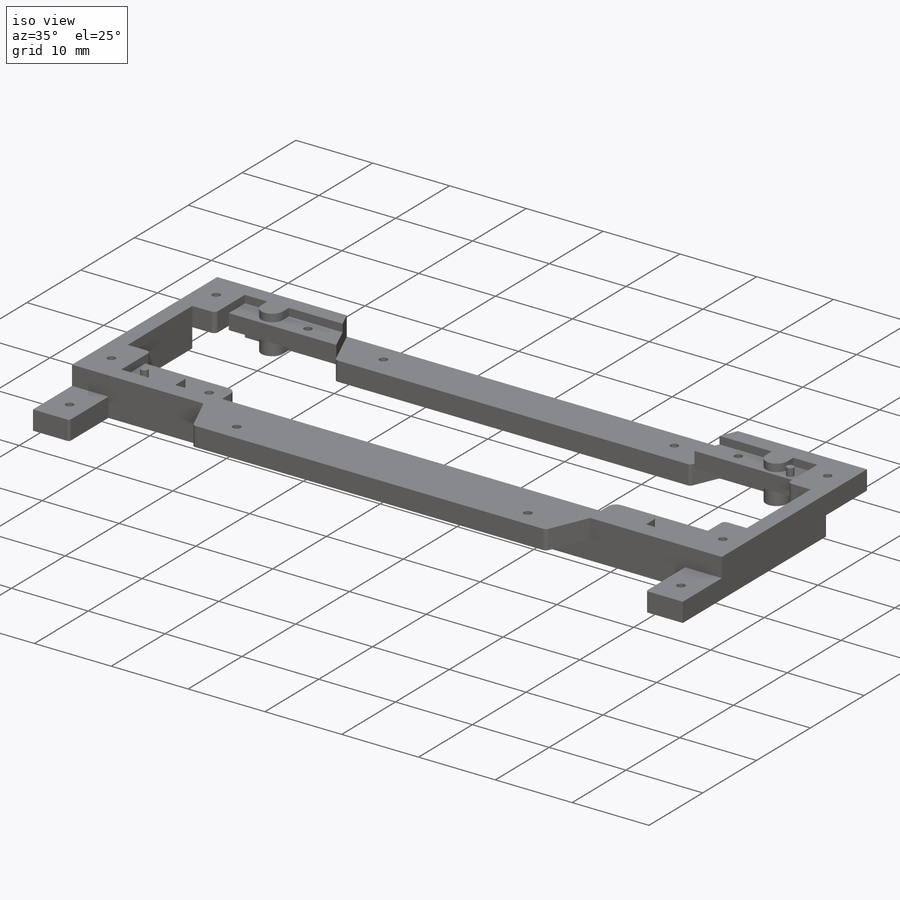
[diagram: iso view]
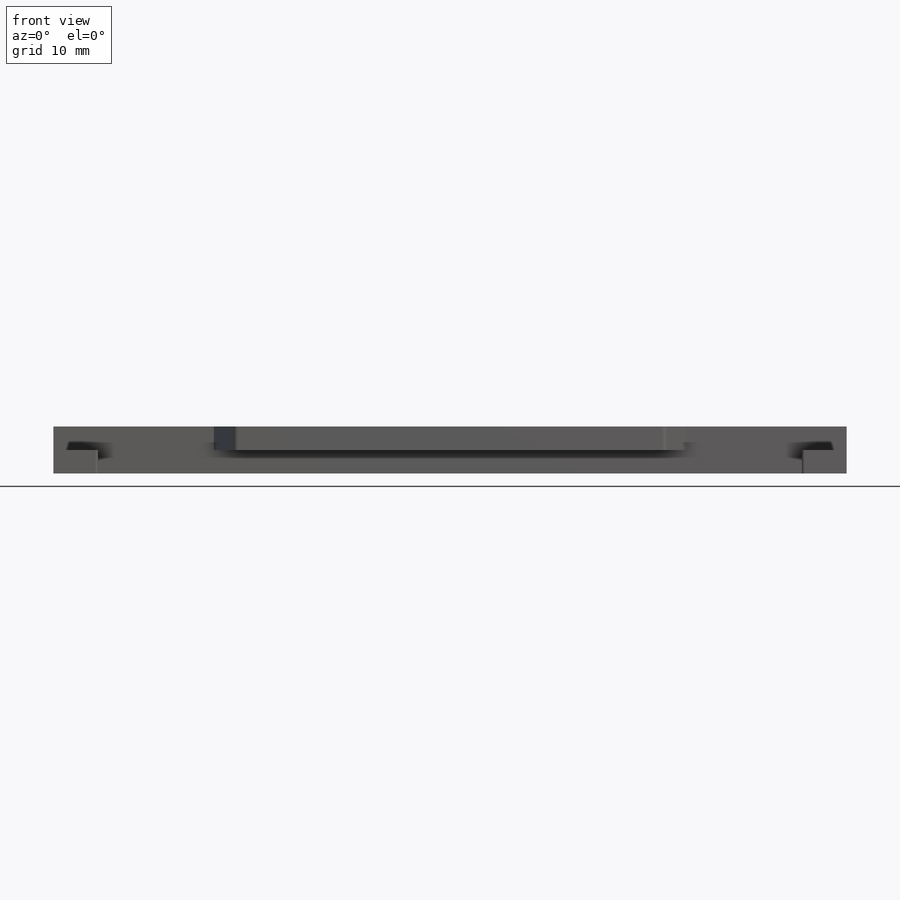
[diagram: front view]
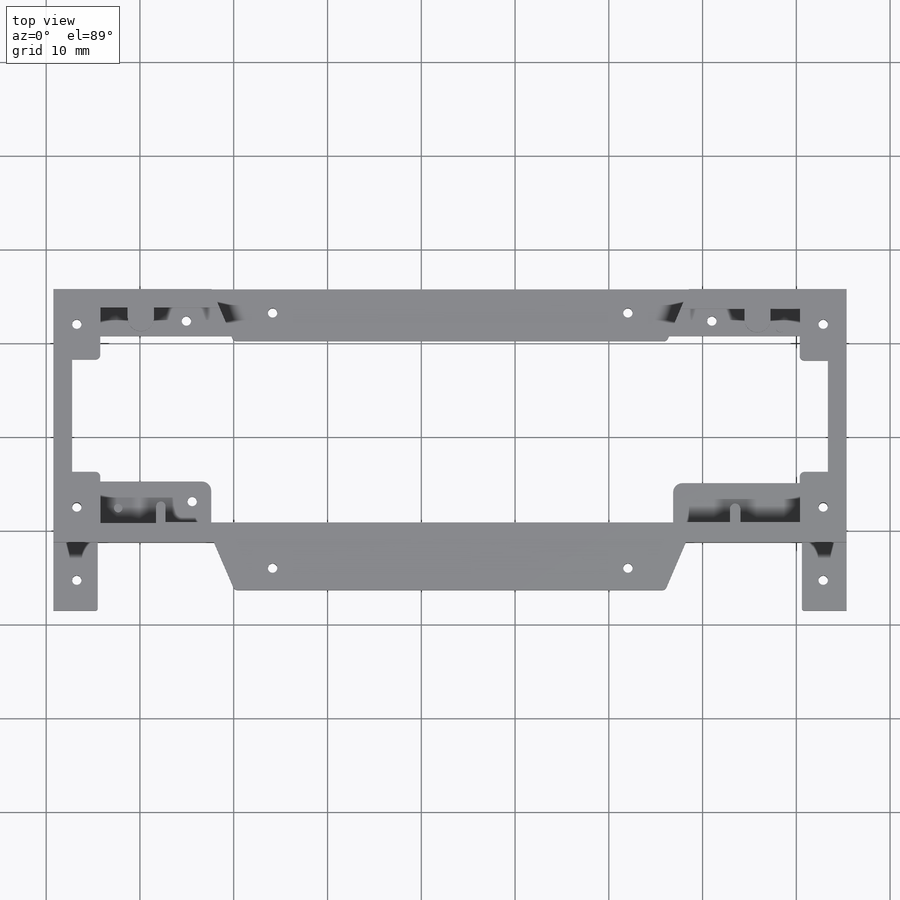
[diagram: top view]
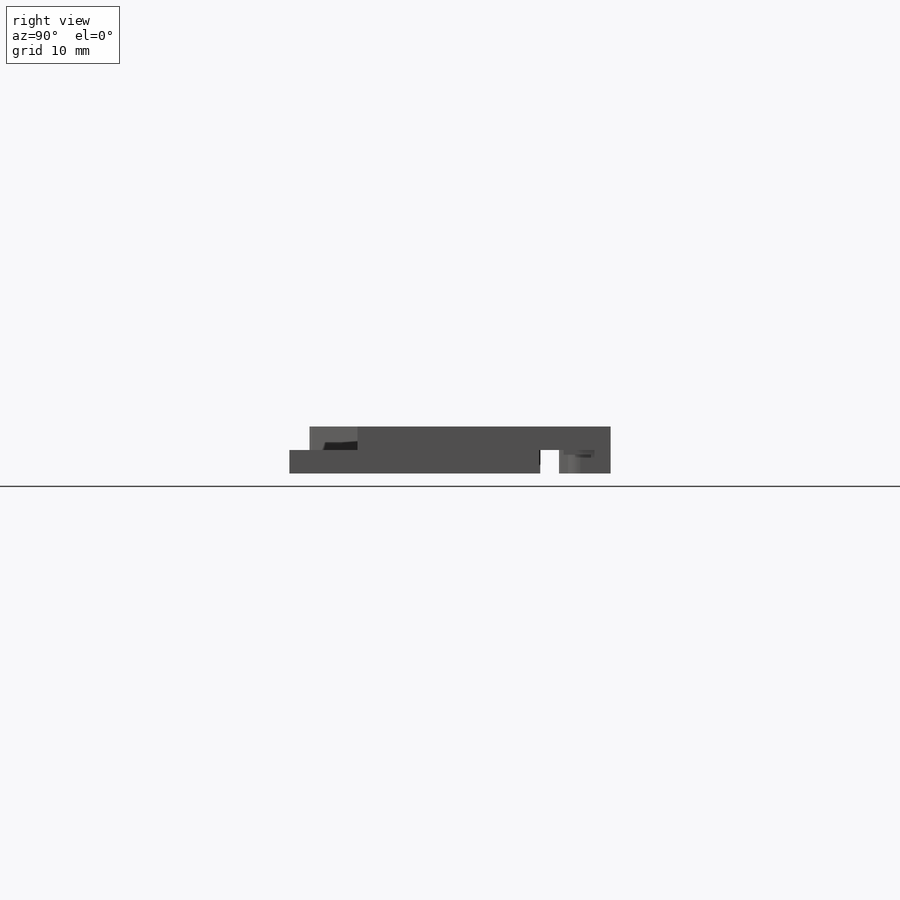
[diagram: right view]
SOLIDWORKS PART (.sldprt)
format: sldprt  version: not decoded by parser v0  size: 921,600 bytes
history: native  units: mm
features: sketch x10, extrude x5, cut_extrude x5, material x1 (+13 scaffold rows collapsed)
feature tree (34):
  scaffold x13  (default folders/planes/origin — collapsed)
  material  "Material <not specified>"
  sketch  "Sketch3"  dims[c1.D21=1.7mm c1.D24=1.0mm c1.D23=1.65mm c1.D28=1.0mm c1.D29=1.0mm c1.D30=1.0mm c1.D12=1.0mm c1.D14=1.0mm c1.D13=1.0mm c1.D15=1.0mm c1.D16=1.0mm c1.D17=1.0mm c1.D11=1.0mm c1.D18=1.0mm c1.D20=0.8mm c1.D40=1.0mm c1.D42=2.25mm c1.D43=0.85mm c1.D41=0.75mm c1.D1=1.0mm c1.D6=~0.577929mm c1.D8=1.0mm c2.D1=0.5mm c2.D2=~0.503615mm c2.D3=1.15mm c2.D4=1.0mm c2.D5=~0.503508mm c2.D6=~0.502939mm c2.D7=~1.153735mm c2.D8=0.55mm c3.D1=0.5mm c3.D2=~0.503615mm c3.D3=1.4mm c3.D4=1.0mm c3.D5=~0.503508mm c3.D6=~0.502939mm c3.D7=0.55mm c4.D1=73.6mm c4.D2=22.0mm c4.D3=22.0mm c4.D4=11.0mm c4.D5=11.0mm c4.D6=18.5mm c4.D7=18.5mm c4.D8=5.0mm c4.D9=11.9mm c4.D10=11.9mm c4.D11=3.4mm c4.D12=5.5mm c4.D13=5.5mm c4.D14=3.0mm c4.D15=3.0mm c4.D16=3.0mm c4.D17=3.0mm c4.D18=46.8mm c4.D19=1.5mm c4.D20=1.5mm c4.D22=5.0mm c5.D8=36.8mm c5.D11=11.0mm c5.D23=3.3mm c5.D24=2.0mm c5.D25=2.25mm c5.D26=1.75mm c6.D25=3.3mm c6.D26=2.25mm c6.D27=1.75mm c6.D29=1.5mm c6.D30=1.5mm c6.D19=1.6mm c6.D20=2.0mm c6.D31=1.5mm c6.D32=4.0mm c6.D33=5.5mm c6.D34=1.0mm c6.D35=1.0mm c6.D36=1.5mm c6.D37=5.3mm c6.D38=9.4mm c6.D39=13.0mm c6.D41=1.5mm c6.D43=1.7mm c6.D44=1.25mm c6.D45=2.0mm c6.D46=2.3mm c6.D47=1.5mm c7.D46=19.6mm c7.D1=12.0mm c7.D2=0.5mm c7.D3=0.5mm c7.D4=0.25mm c7.D5=1.55mm c8.D5=~0.018894deg c9.D5=~1.69984mm c10.D5=~0.018894deg c11.D5=0.25mm c11.D6=0.25mm c11.D7=0.25mm c11.D8=~2.55911mm c11.D9=~25.793967mm c11.D10=~25.87134mm c11.D11=~26.266864mm c11.D12=~26.400356mm c11.D13=~26.852331mm c11.D14=~27.639395mm c11.D15=~33.469679mm c11.D16=~34.79526mm c11.D17=~35.947702mm c11.D18=~37.100063mm c11.D19=~40.360316mm c11.D20=~40.361612mm c11.D21=~40.865048mm c11.D22=~40.865227mm c11.D23=~43.361137mm c11.D24=~19.676998mm c11.D25=~19.676998mm c11.D26=20.1398mm c11.D27=~20.224792mm c11.D28=~21.508882mm c11.D29=~22.401407mm c11.D30=~23.39556mm c11.D31=~23.401407mm c11.D32=~27.780321mm c11.D33=~29.911948mm c11.D34=~34.233123mm c11.D35=~34.233484mm c11.D36=~34.736926mm c11.D37=~34.737099mm c11.D38=~37.233015mm c12.D20=~40.361612mm c12.D21=~40.865048mm c12.D22=~43.361137mm c12.D23=~19.676998mm c12.D24=20.1398mm c12.D25=~22.401407mm c12.D26=~34.233484mm c12.D27=~34.736926mm c12.D29=~8.111265mm c12.D31=~8.112154mm c12.D35=~8.229172mm c12.D36=~8.23003mm c12.D37=~8.61577mm c12.D38=~8.733645mm c12.D39=~10.230415mm c12.D40=~10.416709mm c12.D41=~10.535595mm c12.D42=~10.727367mm c12.D43=~10.733923mm c12.D44=~12.459472mm c12.D45=~12.514085mm c12.D46=~12.515772mm c12.D47=~12.633777mm c12.D48=~13.610805mm c12.D49=~13.612024mm c12.D50=~13.612024mm c12.D51=~13.729919mm c12.D52=~13.729919mm c12.D53=~13.730372mm c12.D54=~3.762518mm c12.D55=~3.763055mm c12.D56=~3.763055mm c12.D57=~4.777576mm c12.D58=~4.950943mm c12.D59=~5.777559mm c12.D60=~7.451002mm c12.D61=~7.715607mm c12.D62=~9.163538mm c12.D63=~9.262484mm c12.D64=~9.262484mm c13.D29=~8.111265mm c13.D31=~8.229172mm c13.D35=~10.230415mm c13.D36=~12.459472mm c13.D37=~13.612024mm c13.D38=~13.729919mm c13.D39=~3.763055mm c13.D40=~4.777576mm c13.D41=~9.262484mm c13.D42=~40.296334mm c13.D43=~11.87432mm c13.D1=0.25mm c13.D2=0.25mm c13.D3=0.25mm c13.D4=0.25mm c13.D5=~0.250001mm c13.D6=~0.249999mm c13.D8=~25.793967mm c13.D9=~25.87134mm c13.D10=~26.266864mm c13.D11=~26.400356mm c13.D12=~26.852331mm c13.D13=~27.639395mm c13.D14=~33.469679mm c13.D15=~34.451304mm c13.D16=~35.851304mm c13.D17=~37.251304mm c13.D18=~40.360316mm c13.D19=~40.361612mm c13.D20=~40.865048mm c13.D21=~40.865227mm c13.D22=~43.361137mm c13.D23=~19.676998mm c13.D24=20.1398mm c13.D25=~20.224792mm c13.D26=~21.508882mm c13.D27=~22.401407mm c13.D28=~23.39556mm c14.D29=~23.401407mm c14.D30=~27.780321mm c14.D31=~29.911948mm c14.D32=~34.233123mm c14.D33=~34.233484mm c14.D34=~34.736926mm c14.D35=~34.737099mm c14.D36=~37.233015mm c14.D15=~34.451304mm c14.D16=~40.361612mm c14.D17=~40.865048mm c14.D19=~43.361137mm c14.D20=~19.676998mm c14.D21=20.1398mm c14.D22=~22.401407mm c14.D23=~34.233484mm c14.D24=~34.736926mm c14.D25=~8.111265mm c14.D27=~8.112154mm c15.D29=~8.229172mm c15.D33=~8.23003mm c15.D34=~8.61577mm c15.D35=~8.733645mm c15.D36=~10.230415mm c15.D37=~10.416709mm c15.D38=~10.535595mm c15.D39=~10.727367mm c15.D40=~10.733923mm c15.D41=~12.512891mm c15.D42=~12.512891mm c15.D43=~12.512891mm c15.D44=~12.633777mm c15.D45=~13.610805mm c15.D46=~13.612024mm c15.D47=~13.729919mm c15.D48=~13.730372mm c15.D49=~3.762518mm c15.D50=~3.763055mm c15.D51=~4.777576mm c15.D52=~4.950943mm c15.D53=~5.777559mm c15.D54=~7.451002mm c15.D55=~7.715607mm c15.D56=~9.163538mm c15.D57=~9.262484mm c15.D25=~8.111265mm c15.D27=~8.229172mm c16.D29=~10.230415mm c16.D33=~12.512891mm c16.D34=~4.777576mm c16.D1=0.75mm c16.D2=0.75mm c17.D1=0.75mm]
  sketch  "Sketch1"  dims[c1.D1=84.6mm c1.D2=27.0mm c1.D3=1.0mm c1.D4=1.0mm c2.D3=1.0mm c2.D4=1.0mm c3.D3=1.0mm c3.D4=1.0mm c4.D3=2.0mm c4.D4=~2.003749mm c5.D3=~45.363318mm c5.D4=~15.73367mm]
  extrude  "Boss-Extrude1"  Depth=5mm
  cut_extrude  "Cut-Extrude1"  [1 undecoded]
  sketch  "Sketch9"  dims[c1.D21=1.7mm c1.D24=1.0mm c1.D23=1.65mm c1.D28=1.0mm c1.D29=1.0mm c1.D30=1.0mm c1.D12=1.0mm c1.D14=1.0mm c1.D13=1.0mm c1.D15=1.0mm c1.D16=1.0mm c1.D17=1.0mm c1.D11=1.0mm c1.D18=1.0mm c1.D20=0.8mm c1.D40=1.0mm c1.D42=2.25mm c1.D43=0.85mm c1.D41=0.75mm c1.D3=~0.491494mm c1.D1=1.0mm c1.D2=1.0mm c2.D3=1.0mm c2.D4=1.0mm c2.D5=1.0mm c2.D6=1.0mm c2.D7=1.0mm c2.D9=1.0mm c2.D10=1.0mm c2.D11=1.0mm c2.D12=1.0mm c2.D13=1.0mm c2.D1=73.6mm c2.D2=22.0mm c3.D3=22.0mm c3.D4=11.0mm c3.D5=11.0mm c3.D6=18.5mm c3.D7=18.5mm c3.D8=5.0mm c3.D9=11.9mm c3.D10=11.9mm c3.D11=3.4mm c3.D12=5.5mm c3.D13=5.5mm c3.D14=3.0mm c3.D15=3.0mm c3.D16=3.0mm c3.D17=3.0mm c3.D18=46.8mm c3.D19=1.5mm c3.D20=1.5mm c3.D22=5.0mm c4.D8=36.8mm c4.D11=11.0mm c4.D23=3.3mm c4.D24=2.0mm c4.D25=2.25mm c4.D26=1.75mm c5.D25=3.3mm c5.D26=2.25mm c5.D27=1.75mm c5.D29=1.5mm c5.D30=1.5mm c5.D19=1.6mm c5.D20=2.0mm c5.D31=1.5mm c5.D32=4.0mm c5.D33=5.5mm c5.D34=1.0mm c5.D35=1.0mm c5.D36=1.5mm c5.D37=5.3mm c5.D38=9.4mm c5.D39=13.0mm c5.D41=1.5mm c5.D43=1.7mm c5.D44=1.25mm c5.D45=2.0mm c5.D46=2.3mm c5.D47=1.5mm c6.D46=19.6mm c6.D1=0.5mm c6.D2=0.5mm c6.D3=~45.481208mm c7.D2=1.5mm c7.D1=3.75mm c8.D2=2.5mm c8.D3=3.75mm c8.D4=2.5mm c8.D5=2.5mm c8.D6=2.5mm c8.D7=5.0mm c8.D8=5.0mm c8.D9=2.5mm c8.D10=3.75mm c8.D11=3.75mm c8.D12=2.5mm c8.D14=~9.186041mm c8.D15=~9.802801mm c8.D16=~65.21956mm c8.D17=~2.350893mm c8.D18=~21.600893mm c8.D19=~42.20636mm]
  extrude  "Boss-Extrude3"  [1 undecoded]
  sketch  "Sketch3<5>"  dims[D1=1.0mm D19=2.0mm]
  sketch  "Sketch13"  dims[c1.D1=0.5mm c1.D2=~45.469663mm c1.D3=~2.480816mm c1.D4=~2.496186mm c1.D5=~2.734432mm c1.D6=~15.120912mm c1.D7=~17.199225mm c1.D8=~17.658255mm c1.D9=~62.923273mm c1.D10=~63.382902mm c1.D11=~65.443369mm c1.D12=~77.827594mm c1.D13=~78.081209mm c2.D3=~2.480816mm c2.D4=~2.496186mm c2.D5=~15.120912mm c2.D6=~17.199225mm c2.D7=~17.658255mm c2.D8=~62.923273mm c2.D9=~63.382902mm c2.D10=~14.511112mm c2.D11=~14.511112mm c2.D12=~14.764261mm c3.D10=~14.511112mm c3.D1=0.25mm c3.D2=0.25mm]
  cut_extrude  "Cut-Extrude3"  Depth=2.5mm
  cut_extrude  "Cut-Extrude5"  [1 undecoded]
  sketch  "Sketch13<4>"  dims[D19=2.5mm]
  extrude  "Boss-Extrude4"  [1 undecoded]
  sketch  "Sketch13<7>"  dims[D1=2.5mm]
  extrude  "Boss-Extrude5"  [1 undecoded]
  sketch  "Sketch13<8>"  dims[D1=2.5mm D19=2.5mm]
  cut_extrude  "Cut-Extrude2"  [1 undecoded]
  sketch  "Sketch15"  dims[c1.D1=~0.717583mm c1.D2=1.0mm c1.D4=1.0mm c1.D5=1.0mm c1.D7=1.0mm c1.D8=1.0mm c1.D6=1.0mm c1.D9=1.0mm c2.D1=~0.119719mm c2.D3=1.0mm c3.D1=4.0mm c3.D2=2.5mm c3.D3=4.0mm c3.D4=2.5mm c3.D5=2.75mm c3.D6=2.75mm c3.D7=4.75mm c3.D8=4.75mm c4.D5=~4.653541mm c4.D6=~4.583039mm c4.D7=~2.372927mm c4.D8=2.3609mm c4.D1=3.25mm c4.D2=2.35mm c4.D3=2.3609mm c4.D4=~21.32199mm]
  cut_extrude  "Cut-Extrude6"  [1 undecoded]
  sketch  "Sketch16"  dims[D1=~0.441989mm]
  extrude  "Boss-Extrude6"  Depth=1mm
decode coverage: 13 of 20 modeling features carry decoded parameters
note: ~ marks probable driven/reference dimensions
note: 7 parameter values undecoded
summary: no parameter record found for 7 features
note: suppression state not decoded; provenance and decode notes live in map.json
